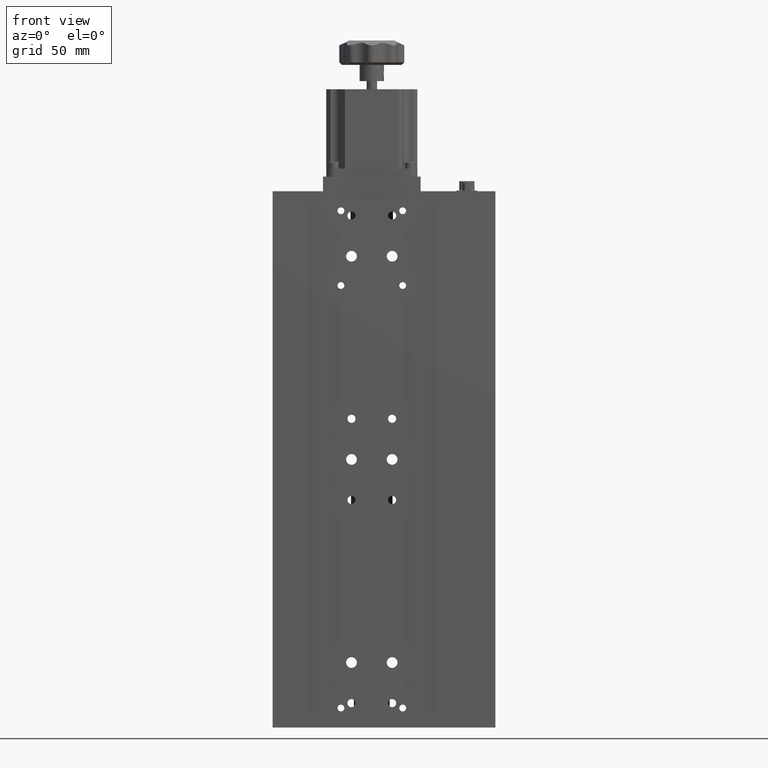
[diagram: clean part render]
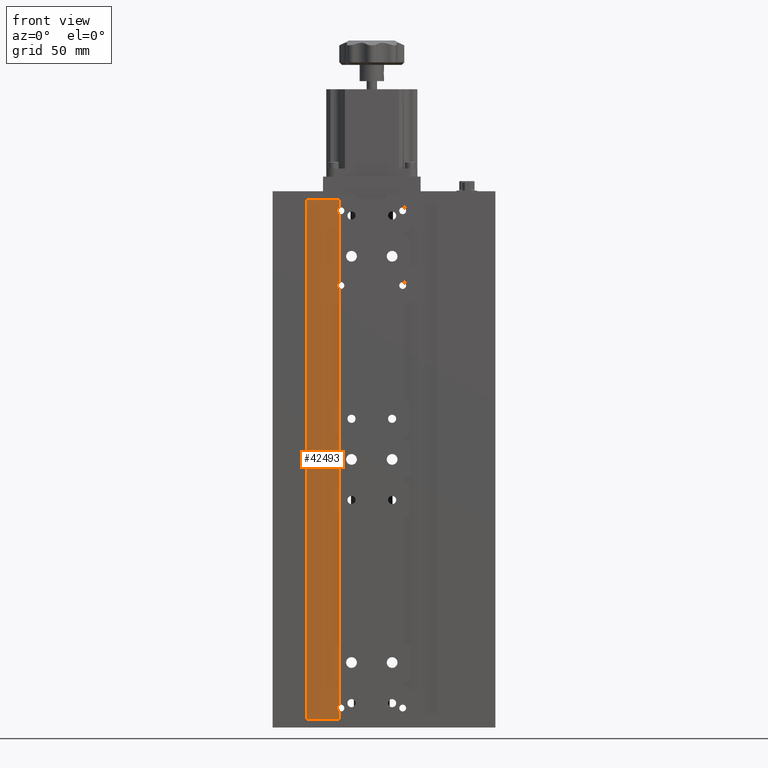
[diagram: same view with one face highlighted and labeled with its STEP entity id]
A machine part, front view. The second image highlights one B-rep face of the part: STEP entity #42493.
In plain terms, the highlighted planar face has unit normal (0, 1, 0).
Its self-contained STEP definition (entity closure, byte-faithful):
#63 = ORIENTED_EDGE ( 'NONE', *, *, #4135, .T. ) ;
#947 = AXIS2_PLACEMENT_3D ( 'NONE', #22944, #3384, #26257 ) ;
#1410 = ORIENTED_EDGE ( 'NONE', *, *, #27306, .T. ) ;
#3020 = CARTESIAN_POINT ( 'NONE',  ( -30.28011670107466800, -8.604423987207612300, 97.23929929348793200 ) ) ;
#3384 = DIRECTION ( 'NONE',  ( 0.0000000000000000000, 1.000000000000000000, 0.0000000000000000000 ) ) ;
#3553 = VECTOR ( 'NONE', #12586, 1000.000000000000000 ) ;
#4037 = CARTESIAN_POINT ( 'NONE',  ( -50.28011670107466800, -8.604423987207612300, 97.23929929348793200 ) ) ;
#4135 = EDGE_CURVE ( 'NONE', #31214, #36408, #13405, .T. ) ;
#4361 = VECTOR ( 'NONE', #14080, 1000.000000000000000 ) ;
#5152 = DIRECTION ( 'NONE',  ( 0.0000000000000000000, 1.000000000000000000, 0.0000000000000000000 ) ) ;
#5629 = VERTEX_POINT ( 'NONE', #16999 ) ;
#6017 = CARTESIAN_POINT ( 'NONE',  ( -30.28011670107467200, -8.604423987207612300, -217.6073192377739900 ) ) ;
#6743 = VECTOR ( 'NONE', #32993, 1000.000000000000000 ) ;
#7092 = CARTESIAN_POINT ( 'NONE',  ( -29.28011670107467200, -8.604423987207612300, 90.23929929348791700 ) ) ;
#7326 = DIRECTION ( 'NONE',  ( 0.0000000000000000000, -0.0000000000000000000, 1.000000000000000000 ) ) ;
#7369 = VERTEX_POINT ( 'NONE', #28360 ) ;
#7588 = EDGE_CURVE ( 'NONE', #5629, #28288, #25206, .T. ) ;
#7601 = CARTESIAN_POINT ( 'NONE',  ( -50.28011670107466800, -8.604423987207612300, 97.23929929348793200 ) ) ;
#7720 = CARTESIAN_POINT ( 'NONE',  ( -30.28011670107467200, -8.604423987207612300, 92.08591782474984200 ) ) ;
#8312 = AXIS2_PLACEMENT_3D ( 'NONE', #4037, #26947, #7326 ) ;
#9285 = CARTESIAN_POINT ( 'NONE',  ( -30.28011670107467200, -8.604423987207612300, -262.8387495612155400 ) ) ;
#9741 = LINE ( 'NONE', #7601, #18463 ) ;
#9971 = ORIENTED_EDGE ( 'NONE', *, *, #15020, .T. ) ;
#10387 = DIRECTION ( 'NONE',  ( 0.0000000000000000000, 0.0000000000000000000, 1.000000000000000000 ) ) ;
#10528 = VERTEX_POINT ( 'NONE', #33381 ) ;
#10796 = CARTESIAN_POINT ( 'NONE',  ( -50.28011670107466800, -8.604423987207612300, -222.7607007065120700 ) ) ;
#11340 = VERTEX_POINT ( 'NONE', #3020 ) ;
#11955 = EDGE_CURVE ( 'NONE', #40976, #10528, #20919, .T. ) ;
#12586 = DIRECTION ( 'NONE',  ( 0.0000000000000000000, 0.0000000000000000000, 1.000000000000000000 ) ) ;
#13096 = CARTESIAN_POINT ( 'NONE',  ( -30.28011670107467200, -8.604423987207612300, -262.8387495612155400 ) ) ;
#13405 = LINE ( 'NONE', #34927, #29814 ) ;
#14080 = DIRECTION ( 'NONE',  ( 1.000000000000000000, 0.0000000000000000000, 0.0000000000000000000 ) ) ;
#14097 = LINE ( 'NONE', #10796, #4361 ) ;
#14675 = CIRCLE ( 'NONE', #947, 2.099999999999990800 ) ;
#15020 = EDGE_CURVE ( 'NONE', #10528, #5629, #19864, .T. ) ;
#16071 = EDGE_CURVE ( 'NONE', #36408, #7369, #14097, .T. ) ;
#16377 = ORIENTED_EDGE ( 'NONE', *, *, #7588, .T. ) ;
#16438 = CARTESIAN_POINT ( 'NONE',  ( -30.28011670107467200, -8.604423987207612300, 88.39268076222600700 ) ) ;
#16572 = ORIENTED_EDGE ( 'NONE', *, *, #28166, .T. ) ;
#16999 = CARTESIAN_POINT ( 'NONE',  ( -30.28011670107467200, -8.604423987207612300, 46.08591782474987000 ) ) ;
#17668 = CARTESIAN_POINT ( 'NONE',  ( -30.28011670107467200, -8.604423987207612300, -262.8387495612155400 ) ) ;
#17956 = ORIENTED_EDGE ( 'NONE', *, *, #27896, .F. ) ;
#18218 = CARTESIAN_POINT ( 'NONE',  ( -30.28011670107467200, -8.604423987207612300, -213.9140821752501400 ) ) ;
#18463 = VECTOR ( 'NONE', #37123, 1000.000000000000000 ) ;
#18595 = DIRECTION ( 'NONE',  ( -0.0000000000000000000, -0.0000000000000000000, -1.000000000000000000 ) ) ;
#18894 = VECTOR ( 'NONE', #29463, 1000.000000000000000 ) ;
#19085 = EDGE_CURVE ( 'NONE', #41384, #40976, #14675, .T. ) ;
#19864 = CIRCLE ( 'NONE', #21259, 2.099999999999990800 ) ;
#20919 = LINE ( 'NONE', #13096, #18894 ) ;
#20937 = DIRECTION ( 'NONE',  ( 0.0000000000000000000, 0.0000000000000000000, 1.000000000000000000 ) ) ;
#21259 = AXIS2_PLACEMENT_3D ( 'NONE', #24778, #5152, #28107 ) ;
#22944 = CARTESIAN_POINT ( 'NONE',  ( -29.28011670107467200, -8.604423987207612300, -215.7607007065120700 ) ) ;
#23428 = ORIENTED_EDGE ( 'NONE', *, *, #40270, .T. ) ;
#23539 = ORIENTED_EDGE ( 'NONE', *, *, #19085, .T. ) ;
#24125 = VECTOR ( 'NONE', #20937, 1000.000000000000000 ) ;
#24778 = CARTESIAN_POINT ( 'NONE',  ( -29.28011670107467200, -8.604423987207612300, 44.23929929348793900 ) ) ;
#25180 = LINE ( 'NONE', #17668, #24125 ) ;
#25206 = LINE ( 'NONE', #39585, #6743 ) ;
#26181 = ORIENTED_EDGE ( 'NONE', *, *, #16071, .T. ) ;
#26257 = DIRECTION ( 'NONE',  ( 0.0000000000000000000, 0.0000000000000000000, 1.000000000000000000 ) ) ;
#26947 = DIRECTION ( 'NONE',  ( 0.0000000000000000000, 1.000000000000000000, 0.0000000000000000000 ) ) ;
#27306 = EDGE_CURVE ( 'NONE', #28958, #11340, #25180, .T. ) ;
#27896 = EDGE_CURVE ( 'NONE', #31214, #11340, #9741, .T. ) ;
#28107 = DIRECTION ( 'NONE',  ( 0.0000000000000000000, 0.0000000000000000000, 1.000000000000000000 ) ) ;
#28166 = EDGE_CURVE ( 'NONE', #7369, #41384, #29696, .T. ) ;
#28288 = VERTEX_POINT ( 'NONE', #16438 ) ;
#28360 = CARTESIAN_POINT ( 'NONE',  ( -30.28011670107466800, -8.604423987207612300, -222.7607007065120700 ) ) ;
#28958 = VERTEX_POINT ( 'NONE', #7720 ) ;
#29463 = DIRECTION ( 'NONE',  ( 0.0000000000000000000, 0.0000000000000000000, 1.000000000000000000 ) ) ;
#29696 = LINE ( 'NONE', #9285, #3553 ) ;
#29814 = VECTOR ( 'NONE', #18595, 1000.000000000000000 ) ;
#30014 = DIRECTION ( 'NONE',  ( 0.0000000000000000000, 1.000000000000000000, 0.0000000000000000000 ) ) ;
#31155 = CARTESIAN_POINT ( 'NONE',  ( -50.28011670107466800, -8.604423987207612300, -222.7607007065120700 ) ) ;
#31214 = VERTEX_POINT ( 'NONE', #39007 ) ;
#31728 = EDGE_LOOP ( 'NONE', ( #16572, #23539, #31815, #9971, #16377, #23428, #1410, #17956, #63, #26181 ) ) ;
#31815 = ORIENTED_EDGE ( 'NONE', *, *, #11955, .T. ) ;
#32796 = AXIS2_PLACEMENT_3D ( 'NONE', #7092, #30014, #10387 ) ;
#32993 = DIRECTION ( 'NONE',  ( 0.0000000000000000000, 0.0000000000000000000, 1.000000000000000000 ) ) ;
#33091 = PLANE ( 'NONE',  #8312 ) ;
#33381 = CARTESIAN_POINT ( 'NONE',  ( -30.28011670107467200, -8.604423987207612300, 42.39268076222600700 ) ) ;
#33585 = FACE_OUTER_BOUND ( 'NONE', #31728, .T. ) ;
#34927 = CARTESIAN_POINT ( 'NONE',  ( -50.28011670107466800, -8.604423987207612300, 97.23929929348793200 ) ) ;
#36408 = VERTEX_POINT ( 'NONE', #31155 ) ;
#37123 = DIRECTION ( 'NONE',  ( 1.000000000000000000, 0.0000000000000000000, 0.0000000000000000000 ) ) ;
#39007 = CARTESIAN_POINT ( 'NONE',  ( -50.28011670107466800, -8.604423987207612300, 97.23929929348793200 ) ) ;
#39585 = CARTESIAN_POINT ( 'NONE',  ( -30.28011670107467200, -8.604423987207612300, -262.8387495612155400 ) ) ;
#40270 = EDGE_CURVE ( 'NONE', #28288, #28958, #41706, .T. ) ;
#40976 = VERTEX_POINT ( 'NONE', #18218 ) ;
#41384 = VERTEX_POINT ( 'NONE', #6017 ) ;
#41706 = CIRCLE ( 'NONE', #32796, 2.099999999999990800 ) ;
#42493 = ADVANCED_FACE ( 'NONE', ( #33585 ), #33091, .F. ) ;